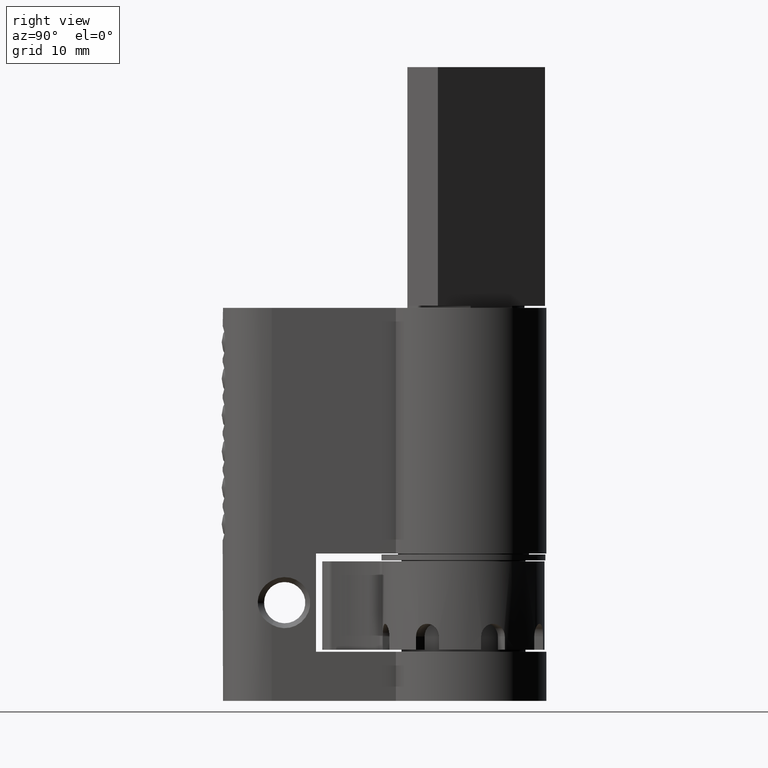
[diagram: clean part render]
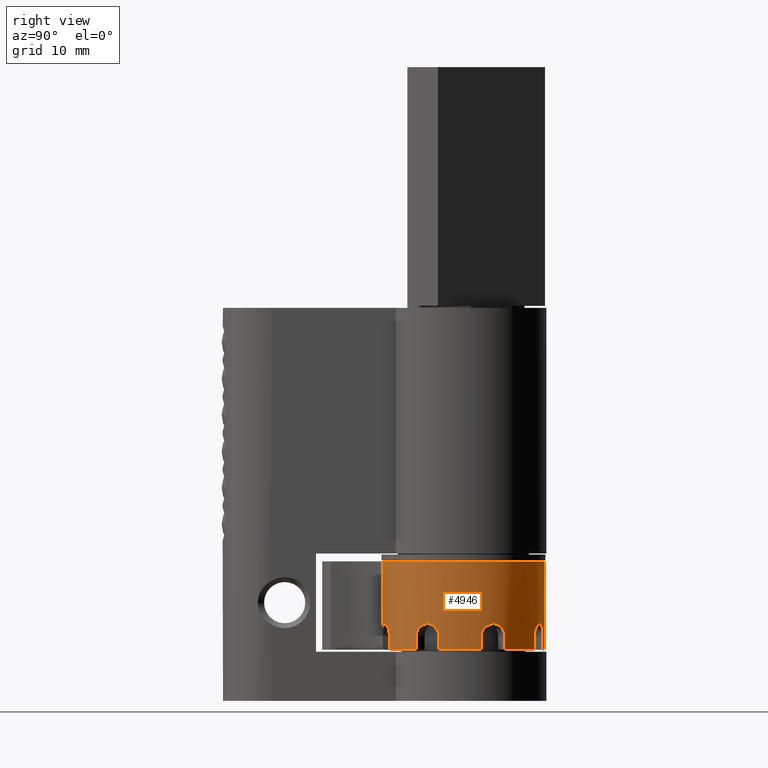
[diagram: same view with one face highlighted and labeled with its STEP entity id]
A machine part, right view. The second image highlights one B-rep face of the part: STEP entity #4946.
In plain terms, the highlighted cylindrical surface (partial cylindrical patch) has radius 8.25 mm, axis along (-0, 0, -1).
Its self-contained STEP definition (entity closure, byte-faithful):
#46 = CARTESIAN_POINT ( 'NONE',  ( 4.181360592484564300, 7.936376385521547200, -2.014212706617747500 ) ) ;
#164 = CARTESIAN_POINT ( 'NONE',  ( -3.607990530532185300, 7.630774681168525800, -3.149999999999999900 ) ) ;
#206 = DIRECTION ( 'NONE',  ( 0.0000000000000000000, 0.0000000000000000000, 1.000000000000000000 ) ) ;
#297 = ORIENTED_EDGE ( 'NONE', *, *, #3967, .T. ) ;
#313 = LINE ( 'NONE', #10210, #10831 ) ;
#320 = CARTESIAN_POINT ( 'NONE',  ( -6.950197036567889300, 19.49491407710913300, -3.149999999999999900 ) ) ;
#347 = CARTESIAN_POINT ( 'NONE',  ( 8.247340912086652800, 15.26203147340815900, -2.573021316981435500 ) ) ;
#459 = CARTESIAN_POINT ( 'NONE',  ( -3.847874939311754600, 7.752149569666931600, -2.357346788293829500 ) ) ;
#463 = CIRCLE ( 'NONE', #5161, 8.249999999999996400 ) ;
#506 = CARTESIAN_POINT ( 'NONE',  ( -5.737785845683579700, 9.122073415681228400, -2.977964927672466000 ) ) ;
#530 = VERTEX_POINT ( 'NONE', #5537 ) ;
#652 = LINE ( 'NONE', #13403, #8487 ) ;
#680 = CARTESIAN_POINT ( 'NONE',  ( 5.248511536462857000, 21.41553096883459900, -2.809088590091445100 ) ) ;
#682 = CARTESIAN_POINT ( 'NONE',  ( 0.0000000000000000000, 15.05000000000000100, 4.500000000000000000 ) ) ;
#721 = CARTESIAN_POINT ( 'NONE',  ( -0.9789254693200191100, 23.24193721834171500, -2.290422919468374300 ) ) ;
#748 = DIRECTION ( 'NONE',  ( -1.000000000000000000, 0.0000000000000000000, 0.0000000000000000000 ) ) ;
#758 = CARTESIAN_POINT ( 'NONE',  ( 7.940924510225126000, 12.81298906509025100, -4.500000000000000000 ) ) ;
#819 = CARTESIAN_POINT ( 'NONE',  ( 1.233531465044407600, 23.20732712395987500, -2.730895296086397900 ) ) ;
#904 = DIRECTION ( 'NONE',  ( 1.000000000000000000, 0.0000000000000000000, 0.0000000000000000000 ) ) ;
#953 = CARTESIAN_POINT ( 'NONE',  ( -8.242766086950734200, 15.39540879521930000, -3.064806857367110600 ) ) ;
#959 = CARTESIAN_POINT ( 'NONE',  ( 5.641190967191945100, 9.029987214501449700, -2.573021316981435100 ) ) ;
#1000 = CARTESIAN_POINT ( 'NONE',  ( -8.245370209674071300, 15.32833449262093100, -2.731228685212359500 ) ) ;
#1009 = CARTESIAN_POINT ( 'NONE',  ( 4.451752164921617600, 8.103679532219910400, -1.891718442361349300 ) ) ;
#1051 = CARTESIAN_POINT ( 'NONE',  ( 5.737785845683578000, 9.122073415681237300, -4.500000000000000000 ) ) ;
#1057 = CARTESIAN_POINT ( 'NONE',  ( 6.950197036567882200, 19.49491407710913300, -4.500000000000000000 ) ) ;
#1090 = CARTESIAN_POINT ( 'NONE',  ( 6.382535051978068800, 20.27806959491323400, -1.891718442361349100 ) ) ;
#1092 = CARTESIAN_POINT ( 'NONE',  ( 4.591367774646196100, 8.195161757056164100, -1.858457764098453200 ) ) ;
#1113 = EDGE_CURVE ( 'NONE', #6431, #4742, #8250, .T. ) ;
#1234 = CARTESIAN_POINT ( 'NONE',  ( 8.242766086950730700, 15.39540879521930300, -3.149999999999999900 ) ) ;
#1289 = CARTESIAN_POINT ( 'NONE',  ( 8.064026062316783000, 13.30390812906572900, -2.109635466130142900 ) ) ;
#1341 = CARTESIAN_POINT ( 'NONE',  ( 8.249782281327089400, 15.12653034752951900, -2.357179771853798600 ) ) ;
#1351 = CARTESIAN_POINT ( 'NONE',  ( -5.221727785971654400, 21.43717926233572200, -4.500000000000000000 ) ) ;
#1358 = AXIS2_PLACEMENT_3D ( 'NONE', #5045, #9220, #10333 ) ;
#1388 = CARTESIAN_POINT ( 'NONE',  ( 8.173058340878482000, 13.92279871558733500, -1.858457764098453600 ) ) ;
#1412 = ORIENTED_EDGE ( 'NONE', *, *, #1679, .F. ) ;
#1428 = CARTESIAN_POINT ( 'NONE',  ( 8.148581976284001300, 13.75768534993816600, -1.891718442361349300 ) ) ;
#1451 = CARTESIAN_POINT ( 'NONE',  ( -5.933686352302791200, 20.78243679873407100, -1.891718442361348700 ) ) ;
#1464 = CARTESIAN_POINT ( 'NONE',  ( -3.639028665496260500, 7.645655046943090800, -2.809173740290191300 ) ) ;
#1509 = CIRCLE ( 'NONE', #4363, 8.249999999999996400 ) ;
#1555 = EDGE_CURVE ( 'NONE', #4742, #8374, #12051, .T. ) ;
#1587 = EDGE_CURVE ( 'NONE', #8531, #13091, #6378, .T. ) ;
#1627 = LINE ( 'NONE', #7579, #12149 ) ;
#1640 = CIRCLE ( 'NONE', #6652, 8.249999999999996400 ) ;
#1679 = EDGE_CURVE ( 'NONE', #13611, #6431, #11021, .T. ) ;
#1689 = CARTESIAN_POINT ( 'NONE',  ( -5.363655153239184500, 8.780345376448565300, -2.109190280182881700 ) ) ;
#1756 = CARTESIAN_POINT ( 'NONE',  ( -0.6544375933045045700, 23.27549452396752000, -2.014051842793156000 ) ) ;
#1792 = VECTOR ( 'NONE', #12467, 1000.000000000000000 ) ;
#1795 = VERTEX_POINT ( 'NONE', #4618 ) ;
#1806 = CARTESIAN_POINT ( 'NONE',  ( -0.7992905870555616600, 23.26207381922417700, -2.110862913336682300 ) ) ;
#1831 = CARTESIAN_POINT ( 'NONE',  ( -8.242766086950732400, 15.39540879521929600, -4.500000000000000000 ) ) ;
#1887 = CARTESIAN_POINT ( 'NONE',  ( 5.221727785971646400, 21.43717926233572200, -3.149999999999999900 ) ) ;
#1929 = CARTESIAN_POINT ( 'NONE',  ( 0.1707453924665146600, 23.29865512613641300, -1.858457764098453600 ) ) ;
#1969 = LINE ( 'NONE', #2257, #9329 ) ;
#1980 = CARTESIAN_POINT ( 'NONE',  ( 3.607990530532192000, 7.630774681168527500, -3.149999999999999900 ) ) ;
#1998 = CARTESIAN_POINT ( 'NONE',  ( 3.607990530532192000, 7.630774681168527500, -3.149999999999999900 ) ) ;
#2020 = CARTESIAN_POINT ( 'NONE',  ( 5.254033728697248900, 8.687439327985826400, -2.014051842793156000 ) ) ;
#2093 = VERTEX_POINT ( 'NONE', #1998 ) ;
#2110 = CARTESIAN_POINT ( 'NONE',  ( 5.611729651231590000, 9.002417432983692800, -2.498400645042421000 ) ) ;
#2155 = CARTESIAN_POINT ( 'NONE',  ( -7.950443229088125300, 12.84607868672684500, -2.809386607868884900 ) ) ;
#2162 = CARTESIAN_POINT ( 'NONE',  ( 6.049690600957252000, 20.66182699604461700, -1.850063857052796300 ) ) ;
#2201 = EDGE_CURVE ( 'NONE', #5326, #3384, #2349, .T. ) ;
#2210 = DIRECTION ( 'NONE',  ( 1.000000000000000000, 0.0000000000000000000, 0.0000000000000000000 ) ) ;
#2257 = CARTESIAN_POINT ( 'NONE',  ( 5.737785845683578000, 9.122073415681237300, 4.500000000000000000 ) ) ;
#2263 = DIRECTION ( 'NONE',  ( 1.000000000000000000, 0.0000000000000000000, 0.0000000000000000000 ) ) ;
#2279 = DIRECTION ( 'NONE',  ( 0.0000000000000000000, 0.0000000000000000000, 1.000000000000000000 ) ) ;
#2285 = ORIENTED_EDGE ( 'NONE', *, *, #3148, .F. ) ;
#2300 = EDGE_CURVE ( 'NONE', #13611, #12532, #12024, .T. ) ;
#2304 = CARTESIAN_POINT ( 'NONE',  ( 8.244399995547997400, 15.36100896608335900, -2.809088590091446800 ) ) ;
#2349 = LINE ( 'NONE', #12047, #10512 ) ;
#2388 = DIRECTION ( 'NONE',  ( 0.0000000000000000000, 0.0000000000000000000, 1.000000000000000000 ) ) ;
#2415 = CARTESIAN_POINT ( 'NONE',  ( -6.931804524728641500, 19.52402993893957400, -2.809088590091446000 ) ) ;
#2445 = CARTESIAN_POINT ( 'NONE',  ( -5.221727785971655300, 21.43717926233572200, 4.500000000000000000 ) ) ;
#2470 = CYLINDRICAL_SURFACE ( 'NONE', #10254, 8.249999999999996400 ) ;
#2541 = DIRECTION ( 'NONE',  ( -0.0000000000000000000, -0.0000000000000000000, -1.000000000000000000 ) ) ;
#2588 = CARTESIAN_POINT ( 'NONE',  ( 3.668400800624667600, 7.660384228627154200, -2.730895296086397900 ) ) ;
#2589 = VERTEX_POINT ( 'NONE', #11057 ) ;
#2612 = CARTESIAN_POINT ( 'NONE',  ( -5.737785845683571800, 9.122073415681233800, -3.149999999999999900 ) ) ;
#2639 = ORIENTED_EDGE ( 'NONE', *, *, #1555, .F. ) ;
#2683 = VECTOR ( 'NONE', #12712, 1000.000000000000000 ) ;
#2684 = ORIENTED_EDGE ( 'NONE', *, *, #6532, .T. ) ;
#2701 = DIRECTION ( 'NONE',  ( 0.0000000000000000000, 0.0000000000000000000, 1.000000000000000000 ) ) ;
#2740 = CARTESIAN_POINT ( 'NONE',  ( -5.546587985377218600, 8.941585523070799000, -2.351234320650940300 ) ) ;
#2795 = VERTEX_POINT ( 'NONE', #11048 ) ;
#2815 = LINE ( 'NONE', #6055, #7987 ) ;
#2833 = CARTESIAN_POINT ( 'NONE',  ( 0.08445112901790777200, 23.30000500951478400, -1.849968208846305200 ) ) ;
#2835 = CIRCLE ( 'NONE', #3625, 8.249999999999996400 ) ;
#2856 = CARTESIAN_POINT ( 'NONE',  ( 0.0000000000000000000, 15.05000000000000100, -4.500000000000000000 ) ) ;
#2872 = CARTESIAN_POINT ( 'NONE',  ( 0.6550368050919902500, 23.27546923383847100, -2.014212706617748000 ) ) ;
#2902 = ORIENTED_EDGE ( 'NONE', *, *, #12602, .T. ) ;
#2909 = CARTESIAN_POINT ( 'NONE',  ( 5.709583226428097900, 21.00715604192476600, -2.014051842793156000 ) ) ;
#2957 = CARTESIAN_POINT ( 'NONE',  ( -1.300000000000003400, 23.19693193785244000, -2.977922735224003000 ) ) ;
#2965 = EDGE_CURVE ( 'NONE', #8856, #10453, #652, .T. ) ;
#3047 = CARTESIAN_POINT ( 'NONE',  ( 6.806050507425977600, 19.71422873000818400, -2.351856848566017200 ) ) ;
#3060 = EDGE_CURVE ( 'NONE', #6760, #12256, #3656, .T. ) ;
#3092 = CARTESIAN_POINT ( 'NONE',  ( 6.433640407563597600, 20.21497826126857700, -1.916318203011965400 ) ) ;
#3094 = CARTESIAN_POINT ( 'NONE',  ( 5.737785845683575300, 9.122073415681235500, -2.977922735224002500 ) ) ;
#3106 = LINE ( 'NONE', #10965, #11291 ) ;
#3148 = EDGE_CURVE ( 'NONE', #530, #8531, #9031, .T. ) ;
#3186 = EDGE_CURVE ( 'NONE', #13659, #1795, #7007, .T. ) ;
#3192 = CARTESIAN_POINT ( 'NONE',  ( 5.364992554649803400, 8.781517189662647400, -2.110862913336682300 ) ) ;
#3231 = CARTESIAN_POINT ( 'NONE',  ( -7.986514711003998500, 12.98110203966873400, -2.497774289444780700 ) ) ;
#3237 = CARTESIAN_POINT ( 'NONE',  ( 4.383154462647314500, 8.060244189545175100, -1.916318203011966300 ) ) ;
#3364 = EDGE_CURVE ( 'NONE', #6760, #11022, #1969, .T. ) ;
#3374 = CARTESIAN_POINT ( 'NONE',  ( 8.093806421912187700, 13.44447362604614500, -2.014212706617747100 ) ) ;
#3384 = VERTEX_POINT ( 'NONE', #4300 ) ;
#3454 = CARTESIAN_POINT ( 'NONE',  ( -4.181616749217396600, 7.936554124636447000, -2.014223730674229900 ) ) ;
#3468 = CARTESIAN_POINT ( 'NONE',  ( 8.242766086950736000, 15.39540879521930500, -2.977922735224003000 ) ) ;
#3528 = CARTESIAN_POINT ( 'NONE',  ( 5.221727785971649100, 21.43717926233572500, -4.500000000000000000 ) ) ;
#3537 = CARTESIAN_POINT ( 'NONE',  ( -6.385908750265327800, 20.27563088637482000, -1.884321085000645100 ) ) ;
#3597 = CARTESIAN_POINT ( 'NONE',  ( 3.607990530532191100, 7.630774681168526600, 4.500000000000000000 ) ) ;
#3625 = AXIS2_PLACEMENT_3D ( 'NONE', #5180, #13706, #904 ) ;
#3638 = CARTESIAN_POINT ( 'NONE',  ( -3.607990530532185300, 7.630774681168525800, -3.149999999999999900 ) ) ;
#3656 = CIRCLE ( 'NONE', #1358, 8.249999999999996400 ) ;
#3831 = ORIENTED_EDGE ( 'NONE', *, *, #8879, .F. ) ;
#3858 = DIRECTION ( 'NONE',  ( 1.000000000000000000, 0.0000000000000000000, 0.0000000000000000000 ) ) ;
#3885 = EDGE_CURVE ( 'NONE', #9159, #12256, #10316, .T. ) ;
#3893 = CARTESIAN_POINT ( 'NONE',  ( -0.1703661617525101500, 23.29998993767721800, -1.850063857052795600 ) ) ;
#3938 = CARTESIAN_POINT ( 'NONE',  ( -1.168055632705928200, 23.21695999162465500, -2.573021316981433800 ) ) ;
#3967 = EDGE_CURVE ( 'NONE', #8856, #13425, #463, .T. ) ;
#4003 = EDGE_LOOP ( 'NONE', ( #8087, #9917, #12503, #5330, #4089, #9313, #297, #12761, #10578, #6328, #6277, #4121, #2285, #7625, #6141, #2639, #11359, #1412, #11578, #3831, #6152, #9829, #2684, #9918, #9546, #4548, #8485, #9268, #5860, #2902, #4281, #13113 ) ) ;
#4067 = CARTESIAN_POINT ( 'NONE',  ( -2.867096866834723200, 7.314222369006045300, 4.500000000000000000 ) ) ;
#4089 = ORIENTED_EDGE ( 'NONE', *, *, #12757, .F. ) ;
#4121 = ORIENTED_EDGE ( 'NONE', *, *, #1587, .F. ) ;
#4166 = CARTESIAN_POINT ( 'NONE',  ( 6.665305590709233600, 19.91323498691223600, -2.109635466130142900 ) ) ;
#4204 = CARTESIAN_POINT ( 'NONE',  ( 6.945562338291195700, 19.50218467179050600, -2.978826338205058400 ) ) ;
#4281 = ORIENTED_EDGE ( 'NONE', *, *, #12208, .T. ) ;
#4293 = VECTOR ( 'NONE', #10810, 1000.000000000000000 ) ;
#4297 = CARTESIAN_POINT ( 'NONE',  ( -8.148490550159845500, 13.75712467246212800, -1.891886852822900700 ) ) ;
#4300 = CARTESIAN_POINT ( 'NONE',  ( -7.940924510225124200, 12.81298906509024600, -3.149999999999999900 ) ) ;
#4363 = AXIS2_PLACEMENT_3D ( 'NONE', #6945, #6903, #10984 ) ;
#4400 = CARTESIAN_POINT ( 'NONE',  ( 8.242766086950730700, 15.39540879521930300, -3.149999999999999900 ) ) ;
#4405 = CARTESIAN_POINT ( 'NONE',  ( 2.867096866834714300, 7.314222369006041700, -4.500000000000000000 ) ) ;
#4436 = CARTESIAN_POINT ( 'NONE',  ( 7.940924510225122500, 12.81298906509025300, -3.149999999999999900 ) ) ;
#4494 = CARTESIAN_POINT ( 'NONE',  ( 8.248350469043069600, 15.22169485498513800, -2.498400645042420100 ) ) ;
#4520 = CARTESIAN_POINT ( 'NONE',  ( -5.254464391146275800, 21.41029783178359800, -2.811939846125182100 ) ) ;
#4531 = EDGE_CURVE ( 'NONE', #11060, #530, #2815, .T. ) ;
#4532 = CARTESIAN_POINT ( 'NONE',  ( -4.592066363272435200, 8.194034009803612400, -1.850129356365146200 ) ) ;
#4548 = ORIENTED_EDGE ( 'NONE', *, *, #5824, .F. ) ;
#4560 = CARTESIAN_POINT ( 'NONE',  ( -6.665990107540942200, 19.91226261539924300, -2.110862913336683200 ) ) ;
#4618 = CARTESIAN_POINT ( 'NONE',  ( 6.950197036567880500, 19.49491407710913300, -3.149999999999999900 ) ) ;
#4651 = CARTESIAN_POINT ( 'NONE',  ( 0.0000000000000000000, 15.05000000000000100, -4.500000000000000000 ) ) ;
#4659 = VECTOR ( 'NONE', #5247, 1000.000000000000000 ) ;
#4742 = VERTEX_POINT ( 'NONE', #6855 ) ;
#4794 = EDGE_CURVE ( 'NONE', #11060, #8374, #6998, .T. ) ;
#4879 = CARTESIAN_POINT ( 'NONE',  ( -5.068643561670759500, 8.540193513654383400, -1.916126268495512900 ) ) ;
#4912 = CARTESIAN_POINT ( 'NONE',  ( -1.300000000000002500, 23.19693193785243300, -3.149999999999999900 ) ) ;
#4918 = CIRCLE ( 'NONE', #12548, 8.249999999999996400 ) ;
#4946 = ADVANCED_FACE ( 'NONE', ( #12339 ), #2470, .T. ) ;
#4963 = CARTESIAN_POINT ( 'NONE',  ( 1.299999999999996000, 23.19693193785243000, -3.065086773822777800 ) ) ;
#5007 = CARTESIAN_POINT ( 'NONE',  ( 5.355208928677621200, 21.32586662649891500, -2.498400645042420500 ) ) ;
#5011 = CARTESIAN_POINT ( 'NONE',  ( -6.950197036567889300, 19.49491407710913300, -3.149999999999999900 ) ) ;
#5045 = CARTESIAN_POINT ( 'NONE',  ( 0.0000000000000000000, 15.05000000000000100, -4.500000000000000000 ) ) ;
#5070 = CARTESIAN_POINT ( 'NONE',  ( 0.0000000000000000000, 15.05000000000000100, 4.500000000000000000 ) ) ;
#5092 = CARTESIAN_POINT ( 'NONE',  ( 1.258155737652413500, 23.20351633877234900, -2.811939846125183400 ) ) ;
#5161 = AXIS2_PLACEMENT_3D ( 'NONE', #4651, #13213, #6828 ) ;
#5180 = CARTESIAN_POINT ( 'NONE',  ( 0.0000000000000000000, 15.05000000000000100, -4.500000000000000000 ) ) ;
#5182 = CARTESIAN_POINT ( 'NONE',  ( -8.248327208467728200, 15.22888040558957100, -2.493813174800857200 ) ) ;
#5224 = CARTESIAN_POINT ( 'NONE',  ( 6.950197036567880500, 19.49491407710913300, -3.149999999999999900 ) ) ;
#5247 = DIRECTION ( 'NONE',  ( -0.0000000000000000000, -0.0000000000000000000, -1.000000000000000000 ) ) ;
#5269 = CARTESIAN_POINT ( 'NONE',  ( -8.009806847118143800, 13.07319695690101100, -2.356942507561714500 ) ) ;
#5326 = VERTEX_POINT ( 'NONE', #8609 ) ;
#5327 = CARTESIAN_POINT ( 'NONE',  ( 6.580097500248929700, 20.02892902340113300, -2.014212706617746700 ) ) ;
#5330 = ORIENTED_EDGE ( 'NONE', *, *, #3885, .F. ) ;
#5349 = VERTEX_POINT ( 'NONE', #4405 ) ;
#5372 = CARTESIAN_POINT ( 'NONE',  ( 4.871555618062088500, 8.389721893120880100, -1.850063857052796300 ) ) ;
#5523 = CARTESIAN_POINT ( 'NONE',  ( 8.245852239920664000, 14.74509089100981600, -2.014051842793155500 ) ) ;
#5534 = CARTESIAN_POINT ( 'NONE',  ( 0.0000000000000000000, 15.05000000000000100, -4.500000000000000000 ) ) ;
#5537 = CARTESIAN_POINT ( 'NONE',  ( -1.300000000000002500, 23.19693193785243300, -3.149999999999999900 ) ) ;
#5547 = CARTESIAN_POINT ( 'NONE',  ( 7.940924510225124200, 12.81298906509025500, 4.500000000000000000 ) ) ;
#5570 = CARTESIAN_POINT ( 'NONE',  ( 7.952322212136894400, 12.85378598921472800, -2.811939846125182600 ) ) ;
#5581 = CARTESIAN_POINT ( 'NONE',  ( -2.867096866834723200, 7.314222369006045300, -4.500000000000000000 ) ) ;
#5694 = CARTESIAN_POINT ( 'NONE',  ( -6.276208040904420700, 20.40729140780417000, -1.850063857052796500 ) ) ;
#5705 = CARTESIAN_POINT ( 'NONE',  ( -3.607990530532185800, 7.630774681168524000, -2.977964885383265900 ) ) ;
#5736 = CARTESIAN_POINT ( 'NONE',  ( -6.877442424995758900, 19.60679439483090300, -2.573021316981433800 ) ) ;
#5824 = EDGE_CURVE ( 'NONE', #6712, #10472, #3106, .T. ) ;
#5860 = ORIENTED_EDGE ( 'NONE', *, *, #8538, .F. ) ;
#6055 = CARTESIAN_POINT ( 'NONE',  ( -1.300000000000002500, 23.19693193785243300, 4.500000000000000000 ) ) ;
#6057 = CARTESIAN_POINT ( 'NONE',  ( 1.135735283601821500, 23.22171634944374200, -2.494942843737767200 ) ) ;
#6098 = CARTESIAN_POINT ( 'NONE',  ( 5.427251064526024600, 21.26367125506270400, -2.357179771853799500 ) ) ;
#6141 = ORIENTED_EDGE ( 'NONE', *, *, #4794, .T. ) ;
#6152 = ORIENTED_EDGE ( 'NONE', *, *, #13828, .F. ) ;
#6238 = CARTESIAN_POINT ( 'NONE',  ( 6.219103341388898100, 20.47148211094870600, -1.849968208846304800 ) ) ;
#6272 = CARTESIAN_POINT ( 'NONE',  ( -8.093580490327168400, 13.44329359668698500, -2.014829318746354400 ) ) ;
#6277 = ORIENTED_EDGE ( 'NONE', *, *, #8185, .T. ) ;
#6281 = CARTESIAN_POINT ( 'NONE',  ( 5.541591241156693200, 8.938082862200534600, -2.357179771853799500 ) ) ;
#6322 = CARTESIAN_POINT ( 'NONE',  ( -6.950197036567887600, 19.49491407710913300, 4.500000000000000000 ) ) ;
#6328 = ORIENTED_EDGE ( 'NONE', *, *, #13286, .F. ) ;
#6331 = CARTESIAN_POINT ( 'NONE',  ( -7.940924510225122500, 12.81298906509024400, -2.980444499737070300 ) ) ;
#6378 = LINE ( 'NONE', #10000, #10357 ) ;
#6430 = CARTESIAN_POINT ( 'NONE',  ( 5.737785845683577100, 9.122073415681237300, -3.149999999999999900 ) ) ;
#6431 = VERTEX_POINT ( 'NONE', #5011 ) ;
#6476 = CARTESIAN_POINT ( 'NONE',  ( -8.022665558868759200, 13.12567666784047800, -2.291510752272001700 ) ) ;
#6508 = CARTESIAN_POINT ( 'NONE',  ( 1.299999999999995800, 23.19693193785243300, -4.500000000000000000 ) ) ;
#6532 = EDGE_CURVE ( 'NONE', #5326, #11077, #1509, .T. ) ;
#6640 = CARTESIAN_POINT ( 'NONE',  ( -5.349444867134073100, 21.33094597522357800, -2.494942843737767200 ) ) ;
#6652 = AXIS2_PLACEMENT_3D ( 'NONE', #682, #11267, #3858 ) ;
#6712 = VERTEX_POINT ( 'NONE', #8278 ) ;
#6740 = CARTESIAN_POINT ( 'NONE',  ( -5.228411163863753200, 21.43173183770677400, -2.978826338205058400 ) ) ;
#6758 = CARTESIAN_POINT ( 'NONE',  ( 8.249338687345966600, 14.89052248936038800, -2.110862913336682300 ) ) ;
#6760 = VERTEX_POINT ( 'NONE', #1051 ) ;
#6762 = EDGE_CURVE ( 'NONE', #11022, #2093, #13574, .T. ) ;
#6774 = CARTESIAN_POINT ( 'NONE',  ( -6.950197036567886700, 19.49491407710913300, -4.500000000000000000 ) ) ;
#6778 = CARTESIAN_POINT ( 'NONE',  ( -5.273681257846016400, 21.39443627702175400, -2.730895296086397900 ) ) ;
#6825 = CARTESIAN_POINT ( 'NONE',  ( -5.221727785971656200, 21.43717926233572200, -3.149999999999999900 ) ) ;
#6828 = DIRECTION ( 'NONE',  ( 1.000000000000000000, 0.0000000000000000000, 0.0000000000000000000 ) ) ;
#6840 = VERTEX_POINT ( 'NONE', #5581 ) ;
#6855 = CARTESIAN_POINT ( 'NONE',  ( -5.221727785971656200, 21.43717926233572200, -3.149999999999999900 ) ) ;
#6884 = CARTESIAN_POINT ( 'NONE',  ( -3.763470656864765100, 7.708266480795295200, -2.498544968966437200 ) ) ;
#6903 = DIRECTION ( 'NONE',  ( 0.0000000000000000000, 0.0000000000000000000, 1.000000000000000000 ) ) ;
#6945 = CARTESIAN_POINT ( 'NONE',  ( 0.0000000000000000000, 15.05000000000000100, -4.500000000000000000 ) ) ;
#6968 = CARTESIAN_POINT ( 'NONE',  ( -5.617126208622456900, 9.007256547921281600, -2.494205455285679800 ) ) ;
#6982 = B_SPLINE_CURVE_WITH_KNOTS ( 'NONE', 3,
 ( #3638, #5705, #1464, #8903, #6884, #459, #12002, #7935, #3454, #10917, #4532, #7983, #8999, #10117, #4879, #7066, #1689, #2740, #6968, #12235, #506, #2612 ),
 .UNSPECIFIED., .F., .F.,
 ( 4, 2, 2, 2, 2, 2, 2, 2, 2, 2, 4 ),
 ( 0.0000000000000000000, 0.0005087170126898827800, 0.0007630755190348235800, 0.001017434025379764300, 0.001526151038069645900, 0.002034868050759527200, 0.002289226557104468600, 0.002543585063449409900, 0.003052302076139290400, 0.003561019088829170900, 0.004069736101519051000 ),
 .UNSPECIFIED. ) ;
#6998 = CIRCLE ( 'NONE', #7397, 8.249999999999996400 ) ;
#7007 = B_SPLINE_CURVE_WITH_KNOTS ( 'NONE', 3,
 ( #1887, #10465, #680, #13542, #5007, #6098, #13583, #9310, #2909, #10379, #2162, #6238, #7488, #1090, #3092, #5327, #4166, #3047, #8406, #11717, #12806, #4204, #8550, #5224 ),
 .UNSPECIFIED., .F., .F.,
 ( 4, 2, 2, 2, 2, 2, 2, 2, 2, 2, 2, 4 ),
 ( 4.336808689942017700E-019, 0.0005088416529597203700, 0.0007632624794395793000, 0.001017683305919438300, 0.001526524958879150100, 0.002035366611838862000, 0.002289787438318714800, 0.002544208264798568100, 0.003053049917758266900, 0.003561891570717965700, 0.003816312397197813400, 0.004070733223677661500 ),
 .UNSPECIFIED. ) ;
#7066 = CARTESIAN_POINT ( 'NONE',  ( -5.254049969468707300, 8.687424177421402000, -2.013877638656695400 ) ) ;
#7184 = CARTESIAN_POINT ( 'NONE',  ( 1.291487555237472500, 23.19830316332683000, -2.978826338205059700 ) ) ;
#7199 = CARTESIAN_POINT ( 'NONE',  ( -8.242766086950732400, 15.39540879521929600, 4.500000000000000000 ) ) ;
#7211 = DIRECTION ( 'NONE',  ( -0.0000000000000000000, -0.0000000000000000000, -1.000000000000000000 ) ) ;
#7351 = CARTESIAN_POINT ( 'NONE',  ( -8.243141242671461200, 15.38675599967118200, -2.978689200674675200 ) ) ;
#7363 = CARTESIAN_POINT ( 'NONE',  ( 0.0000000000000000000, 15.05000000000000100, -4.500000000000000000 ) ) ;
#7388 = CARTESIAN_POINT ( 'NONE',  ( -5.737785845683572600, 9.122073415681233800, 4.500000000000000000 ) ) ;
#7389 = CARTESIAN_POINT ( 'NONE',  ( -8.063827200940222500, 13.30302470023571700, -2.110430020489820100 ) ) ;
#7395 = CARTESIAN_POINT ( 'NONE',  ( 5.008662336396518800, 8.492534763545236800, -1.884321085000645300 ) ) ;
#7397 = AXIS2_PLACEMENT_3D ( 'NONE', #2856, #9203, #8178 ) ;
#7488 = CARTESIAN_POINT ( 'NONE',  ( 6.275463014228830800, 20.40612073575931600, -1.858457764098453400 ) ) ;
#7490 = CARTESIAN_POINT ( 'NONE',  ( 3.646044000791133200, 7.649381938573620600, -2.811939846125183000 ) ) ;
#7534 = DIRECTION ( 'NONE',  ( -0.0000000000000000000, -0.0000000000000000000, -1.000000000000000000 ) ) ;
#7541 = CARTESIAN_POINT ( 'NONE',  ( 3.842556646835500800, 7.748485665882222800, -2.351856848566019000 ) ) ;
#7579 = CARTESIAN_POINT ( 'NONE',  ( -2.867096866834723200, 7.314222369006045300, 4.500000000000000000 ) ) ;
#7625 = ORIENTED_EDGE ( 'NONE', *, *, #4531, .F. ) ;
#7710 = CARTESIAN_POINT ( 'NONE',  ( -5.604146281274522900, 21.10565005705779400, -2.109635466130142400 ) ) ;
#7732 = CARTESIAN_POINT ( 'NONE',  ( 8.250192579915600200, 15.07128046149092900, -2.290422919468374300 ) ) ;
#7813 = LINE ( 'NONE', #7199, #1792 ) ;
#7844 = CARTESIAN_POINT ( 'NONE',  ( -5.422825121016717100, 21.26854652329119900, -2.351856848566017600 ) ) ;
#7879 = CARTESIAN_POINT ( 'NONE',  ( 3.607990530532191500, 7.630774681168526600, -4.500000000000000000 ) ) ;
#7935 = CARTESIAN_POINT ( 'NONE',  ( -4.055312416450592000, 7.864497181998960900, -2.111044088801439700 ) ) ;
#7983 = CARTESIAN_POINT ( 'NONE',  ( -4.800762043948036100, 8.340127081438526000, -1.849935884179988700 ) ) ;
#7987 = VECTOR ( 'NONE', #13540, 1000.000000000000000 ) ;
#8087 = ORIENTED_EDGE ( 'NONE', *, *, #6762, .F. ) ;
#8109 = CARTESIAN_POINT ( 'NONE',  ( -8.242766086950732400, 15.39540879521929600, -3.149999999999999900 ) ) ;
#8146 = CARTESIAN_POINT ( 'NONE',  ( -1.266022455412887800, 23.20254837495408400, -2.809088590091446400 ) ) ;
#8176 = LINE ( 'NONE', #9371, #4659 ) ;
#8178 = DIRECTION ( 'NONE',  ( 1.000000000000000000, 0.0000000000000000000, 0.0000000000000000000 ) ) ;
#8185 = EDGE_CURVE ( 'NONE', #8348, #13091, #12501, .T. ) ;
#8250 = B_SPLINE_CURVE_WITH_KNOTS ( 'NONE', 3,
 ( #320, #11045, #2415, #5736, #12086, #10945, #8855, #4560, #9874, #3537, #5694, #13071, #8809, #1451, #12179, #13210, #7710, #7844, #6640, #6778, #4520, #6740, #8892, #6825 ),
 .UNSPECIFIED., .F., .F.,
 ( 4, 2, 2, 2, 2, 2, 2, 2, 2, 2, 2, 4 ),
 ( 4.336808689942017700E-019, 0.0005088416529597125600, 0.0007632624794395662900, 0.001017683305919420100, 0.001526524958879127200, 0.002035366611838834200, 0.002289787438318687900, 0.002544208264798541200, 0.003053049917758247800, 0.003561891570717955300, 0.003816312397197808600, 0.004070733223677661500 ),
 .UNSPECIFIED. ) ;
#8276 = CARTESIAN_POINT ( 'NONE',  ( 0.3375838530981017400, 23.29351275374232000, -1.891718442361349100 ) ) ;
#8278 = CARTESIAN_POINT ( 'NONE',  ( -3.607990530532186200, 7.630774681168523100, -4.500000000000000000 ) ) ;
#8316 = DIRECTION ( 'NONE',  ( -0.0000000000000000000, -0.0000000000000000000, -1.000000000000000000 ) ) ;
#8330 = CARTESIAN_POINT ( 'NONE',  ( -1.033754142635618500, 23.23511557377018400, -2.357179771853799500 ) ) ;
#8348 = VERTEX_POINT ( 'NONE', #3528 ) ;
#8365 = VERTEX_POINT ( 'NONE', #7879 ) ;
#8367 = CARTESIAN_POINT ( 'NONE',  ( -8.172911802956091900, 13.92175467220048500, -1.858613148958124400 ) ) ;
#8374 = VERTEX_POINT ( 'NONE', #1351 ) ;
#8401 = CARTESIAN_POINT ( 'NONE',  ( -8.242766086950732400, 15.39540879521929600, -3.149999999999999900 ) ) ;
#8406 = CARTESIAN_POINT ( 'NONE',  ( 6.859509109074796400, 19.63410051293644900, -2.494942843737766800 ) ) ;
#8409 = CARTESIAN_POINT ( 'NONE',  ( 5.713174526552876400, 9.097983980807562400, -2.809088590091446800 ) ) ;
#8414 = DIRECTION ( 'NONE',  ( 0.0000000000000000000, 0.0000000000000000000, 1.000000000000000000 ) ) ;
#8458 = CARTESIAN_POINT ( 'NONE',  ( 3.607990530532192400, 7.630774681168527500, -3.065086773822778300 ) ) ;
#8485 = ORIENTED_EDGE ( 'NONE', *, *, #10367, .T. ) ;
#8487 = VECTOR ( 'NONE', #10104, 1000.000000000000000 ) ;
#8498 = EDGE_CURVE ( 'NONE', #1795, #13425, #10466, .T. ) ;
#8500 = CARTESIAN_POINT ( 'NONE',  ( -5.737785845683573500, 9.122073415681230200, -4.500000000000000000 ) ) ;
#8531 = VERTEX_POINT ( 'NONE', #13302 ) ;
#8538 = EDGE_CURVE ( 'NONE', #2795, #13745, #1640, .T. ) ;
#8540 = DIRECTION ( 'NONE',  ( 0.0000000000000000000, 0.0000000000000000000, 1.000000000000000000 ) ) ;
#8550 = CARTESIAN_POINT ( 'NONE',  ( 6.950197036567883100, 19.49491407710913600, -3.065086773822777800 ) ) ;
#8576 = AXIS2_PLACEMENT_3D ( 'NONE', #5534, #206, #2210 ) ;
#8578 = LINE ( 'NONE', #3597, #9779 ) ;
#8609 = CARTESIAN_POINT ( 'NONE',  ( -7.940924510225124200, 12.81298906509024400, -4.500000000000000000 ) ) ;
#8631 = CARTESIAN_POINT ( 'NONE',  ( 0.0000000000000000000, 15.05000000000000100, -4.500000000000000000 ) ) ;
#8809 = CARTESIAN_POINT ( 'NONE',  ( -6.048441352260097000, 20.66122291370205100, -1.858457764098453200 ) ) ;
#8834 = CARTESIAN_POINT ( 'NONE',  ( 7.984611308106301500, 12.97326578767400900, -2.494942843737766800 ) ) ;
#8855 = CARTESIAN_POINT ( 'NONE',  ( -6.770368088881632200, 19.76468412566409300, -2.290422919468374300 ) ) ;
#8856 = VERTEX_POINT ( 'NONE', #13223 ) ;
#8874 = CARTESIAN_POINT ( 'NONE',  ( 7.940924510225126000, 12.81298906509025000, -3.065086773822777400 ) ) ;
#8879 = EDGE_CURVE ( 'NONE', #11514, #12532, #7813, .T. ) ;
#8892 = CARTESIAN_POINT ( 'NONE',  ( -5.221727785971650900, 21.43717926233571800, -3.065086773822777800 ) ) ;
#8903 = CARTESIAN_POINT ( 'NONE',  ( -3.727503657923028100, 7.690020045325457700, -2.573152219668045400 ) ) ;
#8910 = B_SPLINE_CURVE_WITH_KNOTS ( 'NONE', 3,
 ( #12675, #6331, #2155, #9611, #3231, #5269, #6476, #7389, #6272, #10698, #4297, #8367, #11670, #10509, #12754, #11573, #13788, #9483, #5182, #1000, #13749, #7351, #953, #8401 ),
 .UNSPECIFIED., .F., .F.,
 ( 4, 2, 2, 2, 2, 2, 2, 2, 2, 2, 2, 4 ),
 ( 0.005033618181650120400, 0.005542268779240106000, 0.005796594078035098700, 0.006050919376830091500, 0.006559569974420077900, 0.006813895273215069000, 0.007068220572010059200, 0.007576871169600037800, 0.008085521767190014700, 0.008594172364779991600, 0.008848497663574980000, 0.009102822962369968400 ),
 .UNSPECIFIED. ) ;
#8999 = CARTESIAN_POINT ( 'NONE',  ( -4.870663355925979800, 8.390713091412040500, -1.858387441711049300 ) ) ;
#9031 = B_SPLINE_CURVE_WITH_KNOTS ( 'NONE', 3,
 ( #4912, #2957, #8146, #3938, #10422, #8330, #721, #1806, #1756, #9261, #3893, #2833, #1929, #8276, #11408, #2872, #11370, #12417, #6057, #819, #5092, #7184, #4963, #9393 ),
 .UNSPECIFIED., .F., .F.,
 ( 4, 2, 2, 2, 2, 2, 2, 2, 2, 2, 2, 4 ),
 ( 0.0000000000000000000, 0.0005088416529597077900, 0.0007632624794395610900, 0.001017683305919414500, 0.001526524958879121500, 0.002035366611838828600, 0.002289787438318682300, 0.002544208264798535600, 0.003053049917758243100, 0.003561891570717951000, 0.003816312397197806000, 0.004070733223677660600 ),
 .UNSPECIFIED. ) ;
#9159 = VERTEX_POINT ( 'NONE', #10800 ) ;
#9197 = VECTOR ( 'NONE', #2541, 1000.000000000000000 ) ;
#9203 = DIRECTION ( 'NONE',  ( 0.0000000000000000000, 0.0000000000000000000, 1.000000000000000000 ) ) ;
#9220 = DIRECTION ( 'NONE',  ( 0.0000000000000000000, 0.0000000000000000000, 1.000000000000000000 ) ) ;
#9261 = CARTESIAN_POINT ( 'NONE',  ( -0.3416484501909394200, 23.29441174759193700, -1.884321085000645300 ) ) ;
#9268 = ORIENTED_EDGE ( 'NONE', *, *, #9435, .F. ) ;
#9298 = LINE ( 'NONE', #7388, #11610 ) ;
#9310 = CARTESIAN_POINT ( 'NONE',  ( 5.603259952143592800, 21.10644283087411900, -2.110862913336683600 ) ) ;
#9313 = ORIENTED_EDGE ( 'NONE', *, *, #2965, .F. ) ;
#9329 = VECTOR ( 'NONE', #11815, 1000.000000000000000 ) ;
#9371 = CARTESIAN_POINT ( 'NONE',  ( 2.867096866834714300, 7.314222369006041700, 4.500000000000000000 ) ) ;
#9393 = CARTESIAN_POINT ( 'NONE',  ( 1.299999999999995600, 23.19693193785243300, -3.149999999999999900 ) ) ;
#9430 = EDGE_CURVE ( 'NONE', #2589, #11077, #9298, .T. ) ;
#9435 = EDGE_CURVE ( 'NONE', #13745, #6840, #1627, .T. ) ;
#9462 = VECTOR ( 'NONE', #8316, 1000.000000000000000 ) ;
#9483 = CARTESIAN_POINT ( 'NONE',  ( -8.250481586304452700, 15.13254488642168200, -2.351288427704584900 ) ) ;
#9546 = ORIENTED_EDGE ( 'NONE', *, *, #11465, .F. ) ;
#9611 = CARTESIAN_POINT ( 'NONE',  ( -7.976012716038075800, 12.94125622061091700, -2.574016286562997600 ) ) ;
#9618 = CARTESIAN_POINT ( 'NONE',  ( 3.615750019682352000, 7.634533976749510800, -2.978826338205059300 ) ) ;
#9740 = CARTESIAN_POINT ( 'NONE',  ( 8.135425797377401100, 13.67756551027805400, -1.916318203011966100 ) ) ;
#9779 = VECTOR ( 'NONE', #10037, 1000.000000000000000 ) ;
#9829 = ORIENTED_EDGE ( 'NONE', *, *, #2201, .F. ) ;
#9874 = CARTESIAN_POINT ( 'NONE',  ( -6.579718039090436400, 20.02939346240259900, -2.014051842793156400 ) ) ;
#9894 = CARTESIAN_POINT ( 'NONE',  ( 8.228328948915629900, 14.43222056056646900, -1.884321085000645100 ) ) ;
#9917 = ORIENTED_EDGE ( 'NONE', *, *, #3364, .F. ) ;
#9918 = ORIENTED_EDGE ( 'NONE', *, *, #9430, .F. ) ;
#10000 = CARTESIAN_POINT ( 'NONE',  ( 1.299999999999995600, 23.19693193785243300, 4.500000000000000000 ) ) ;
#10037 = DIRECTION ( 'NONE',  ( -0.0000000000000000000, -0.0000000000000000000, -1.000000000000000000 ) ) ;
#10104 = DIRECTION ( 'NONE',  ( 0.0000000000000000000, 0.0000000000000000000, 1.000000000000000000 ) ) ;
#10117 = CARTESIAN_POINT ( 'NONE',  ( -5.004370038426013200, 8.490598794390212600, -1.891569025795684800 ) ) ;
#10210 = CARTESIAN_POINT ( 'NONE',  ( 5.221727785971649100, 21.43717926233572200, 4.500000000000000000 ) ) ;
#10254 = AXIS2_PLACEMENT_3D ( 'NONE', #5070, #7211, #748 ) ;
#10316 = LINE ( 'NONE', #5547, #4293 ) ;
#10333 = DIRECTION ( 'NONE',  ( 1.000000000000000000, 0.0000000000000000000, 0.0000000000000000000 ) ) ;
#10357 = VECTOR ( 'NONE', #13055, 1000.000000000000000 ) ;
#10367 = EDGE_CURVE ( 'NONE', #6712, #6840, #4918, .T. ) ;
#10379 = CARTESIAN_POINT ( 'NONE',  ( 5.931655795904633900, 20.78607080206134900, -1.884321085000644700 ) ) ;
#10422 = CARTESIAN_POINT ( 'NONE',  ( -1.128108958475626500, 23.22264551789678700, -2.498400645042420100 ) ) ;
#10453 = VERTEX_POINT ( 'NONE', #4400 ) ;
#10465 = CARTESIAN_POINT ( 'NONE',  ( 5.221727785971648200, 21.43717926233572900, -2.977922735224001600 ) ) ;
#10466 = LINE ( 'NONE', #12576, #9462 ) ;
#10472 = VERTEX_POINT ( 'NONE', #164 ) ;
#10509 = CARTESIAN_POINT ( 'NONE',  ( -8.213931610961223500, 14.26082200409017600, -1.849937064017609400 ) ) ;
#10512 = VECTOR ( 'NONE', #2279, 1000.000000000000000 ) ;
#10516 = CARTESIAN_POINT ( 'NONE',  ( 3.756764063251912100, 7.704690850396885600, -2.494942843737767600 ) ) ;
#10520 = AXIS2_PLACEMENT_3D ( 'NONE', #8631, #8540, #11705 ) ;
#10578 = ORIENTED_EDGE ( 'NONE', *, *, #3186, .F. ) ;
#10591 = DIRECTION ( 'NONE',  ( -0.0000000000000000000, -0.0000000000000000000, -1.000000000000000000 ) ) ;
#10658 = CARTESIAN_POINT ( 'NONE',  ( 4.662830158258194600, 8.243552353433607000, -1.849968208846305200 ) ) ;
#10698 = CARTESIAN_POINT ( 'NONE',  ( -8.135333121065448500, 13.67700412809855200, -1.916493909439636000 ) ) ;
#10800 = CARTESIAN_POINT ( 'NONE',  ( 7.940924510225122500, 12.81298906509025300, -3.149999999999999900 ) ) ;
#10810 = DIRECTION ( 'NONE',  ( -0.0000000000000000000, -0.0000000000000000000, -1.000000000000000000 ) ) ;
#10831 = VECTOR ( 'NONE', #2701, 1000.000000000000000 ) ;
#10837 = CARTESIAN_POINT ( 'NONE',  ( 7.958965933723530600, 12.87780135614296600, -2.730895296086397900 ) ) ;
#10917 = CARTESIAN_POINT ( 'NONE',  ( -4.448598733737553900, 8.100395682828347400, -1.884435292561192000 ) ) ;
#10945 = CARTESIAN_POINT ( 'NONE',  ( -6.801722024696901200, 19.71919073096660900, -2.357179771853798600 ) ) ;
#10965 = CARTESIAN_POINT ( 'NONE',  ( -3.607990530532185800, 7.630774681168524900, 4.500000000000000000 ) ) ;
#10984 = DIRECTION ( 'NONE',  ( 1.000000000000000000, 0.0000000000000000000, 0.0000000000000000000 ) ) ;
#11021 = LINE ( 'NONE', #6322, #2683 ) ;
#11022 = VERTEX_POINT ( 'NONE', #13841 ) ;
#11045 = CARTESIAN_POINT ( 'NONE',  ( -6.950197036567886700, 19.49491407710913300, -2.977922735224001200 ) ) ;
#11048 = CARTESIAN_POINT ( 'NONE',  ( 2.867096866834714300, 7.314222369006041700, 4.500000000000000000 ) ) ;
#11057 = CARTESIAN_POINT ( 'NONE',  ( -5.737785845683571800, 9.122073415681233800, -3.149999999999999900 ) ) ;
#11060 = VERTEX_POINT ( 'NONE', #12756 ) ;
#11077 = VERTEX_POINT ( 'NONE', #8500 ) ;
#11267 = DIRECTION ( 'NONE',  ( 0.0000000000000000000, 0.0000000000000000000, 1.000000000000000000 ) ) ;
#11291 = VECTOR ( 'NONE', #2388, 1000.000000000000000 ) ;
#11359 = ORIENTED_EDGE ( 'NONE', *, *, #1113, .F. ) ;
#11370 = CARTESIAN_POINT ( 'NONE',  ( 0.7981091371971275100, 23.26220889655088800, -2.109635466130143300 ) ) ;
#11408 = CARTESIAN_POINT ( 'NONE',  ( 0.4186892902126829700, 23.28974687787636100, -1.916318203011965900 ) ) ;
#11465 = EDGE_CURVE ( 'NONE', #10472, #2589, #6982, .T. ) ;
#11514 = VERTEX_POINT ( 'NONE', #8109 ) ;
#11573 = CARTESIAN_POINT ( 'NONE',  ( -8.245825022358335600, 14.74428850370918000, -2.013578091969483000 ) ) ;
#11578 = ORIENTED_EDGE ( 'NONE', *, *, #2300, .T. ) ;
#11610 = VECTOR ( 'NONE', #7534, 1000.000000000000000 ) ;
#11670 = CARTESIAN_POINT ( 'NONE',  ( -8.184275030894953700, 14.00722206421336600, -1.850031601655922000 ) ) ;
#11705 = DIRECTION ( 'NONE',  ( 1.000000000000000000, 0.0000000000000000000, 0.0000000000000000000 ) ) ;
#11717 = CARTESIAN_POINT ( 'NONE',  ( 6.913774493978468000, 19.55147841591614400, -2.730895296086397500 ) ) ;
#11815 = DIRECTION ( 'NONE',  ( 0.0000000000000000000, 0.0000000000000000000, 1.000000000000000000 ) ) ;
#11960 = CARTESIAN_POINT ( 'NONE',  ( 8.008930037815087400, 13.06646961080746600, -2.351856848566017200 ) ) ;
#12002 = CARTESIAN_POINT ( 'NONE',  ( -3.896679689598484300, 7.777997883505505200, -2.290596256600250700 ) ) ;
#12024 = CIRCLE ( 'NONE', #10520, 8.249999999999996400 ) ;
#12047 = CARTESIAN_POINT ( 'NONE',  ( -7.940924510225124200, 12.81298906509024400, 4.500000000000000000 ) ) ;
#12051 = LINE ( 'NONE', #2445, #9197 ) ;
#12062 = CARTESIAN_POINT ( 'NONE',  ( 8.213984761272252300, 14.26144883334505800, -1.850063857052796300 ) ) ;
#12086 = CARTESIAN_POINT ( 'NONE',  ( -6.855133271790901300, 19.64041527635318500, -2.498400645042418800 ) ) ;
#12149 = VECTOR ( 'NONE', #10591, 1000.000000000000000 ) ;
#12179 = CARTESIAN_POINT ( 'NONE',  ( -5.876954589343149800, 20.84052105496651900, -1.916318203011965000 ) ) ;
#12208 = EDGE_CURVE ( 'NONE', #5349, #8365, #2835, .T. ) ;
#12235 = CARTESIAN_POINT ( 'NONE',  ( -5.713077004135499200, 9.097890591054993000, -2.808665375426679000 ) ) ;
#12256 = VERTEX_POINT ( 'NONE', #758 ) ;
#12339 = FACE_OUTER_BOUND ( 'NONE', #4003, .T. ) ;
#12417 = CARTESIAN_POINT ( 'NONE',  ( 1.040338439177759000, 23.23505034116689300, -2.351856848566018500 ) ) ;
#12467 = DIRECTION ( 'NONE',  ( -0.0000000000000000000, -0.0000000000000000000, -1.000000000000000000 ) ) ;
#12501 = CIRCLE ( 'NONE', #8576, 8.249999999999996400 ) ;
#12503 = ORIENTED_EDGE ( 'NONE', *, *, #3060, .T. ) ;
#12532 = VERTEX_POINT ( 'NONE', #1831 ) ;
#12548 = AXIS2_PLACEMENT_3D ( 'NONE', #7363, #8414, #2263 ) ;
#12576 = CARTESIAN_POINT ( 'NONE',  ( 6.950197036567882200, 19.49491407710913300, 4.500000000000000000 ) ) ;
#12602 = EDGE_CURVE ( 'NONE', #2795, #5349, #8176, .T. ) ;
#12675 = CARTESIAN_POINT ( 'NONE',  ( -7.940924510225124200, 12.81298906509024600, -3.149999999999999900 ) ) ;
#12687 = B_SPLINE_CURVE_WITH_KNOTS ( 'NONE', 3,
 ( #1234, #3468, #2304, #347, #4494, #1341, #7732, #6758, #5523, #9894, #12062, #13094, #1388, #1428, #9740, #3374, #1289, #11960, #8834, #10837, #5570, #12999, #8874, #4436 ),
 .UNSPECIFIED., .F., .F.,
 ( 4, 2, 2, 2, 2, 2, 2, 2, 2, 2, 2, 4 ),
 ( 4.336808689942017700E-019, 0.0005088416529597062700, 0.0007632624794395595700, 0.001017683305919413200, 0.001526524958879120000, 0.002035366611838827300, 0.002289787438318681000, 0.002544208264798534700, 0.003053049917758241300, 0.003561891570717948300, 0.003816312397197802100, 0.004070733223677656200 ),
 .UNSPECIFIED. ) ;
#12712 = DIRECTION ( 'NONE',  ( 0.0000000000000000000, 0.0000000000000000000, 1.000000000000000000 ) ) ;
#12754 = CARTESIAN_POINT ( 'NONE',  ( -8.228251631872202800, 14.43115842018522000, -1.884022557410689500 ) ) ;
#12756 = CARTESIAN_POINT ( 'NONE',  ( -1.300000000000002500, 23.19693193785243300, -4.500000000000000000 ) ) ;
#12757 = EDGE_CURVE ( 'NONE', #10453, #9159, #12687, .T. ) ;
#12761 = ORIENTED_EDGE ( 'NONE', *, *, #8498, .F. ) ;
#12806 = CARTESIAN_POINT ( 'NONE',  ( 6.927297856525824700, 19.53055007267947500, -2.811939846125182100 ) ) ;
#12810 = CARTESIAN_POINT ( 'NONE',  ( 4.056556782153223600, 7.865175699529335600, -2.109635466130142400 ) ) ;
#12873 = EDGE_CURVE ( 'NONE', #2093, #8365, #8578, .T. ) ;
#12999 = CARTESIAN_POINT ( 'NONE',  ( 7.943274698482227300, 12.82128476218530200, -2.978826338205056600 ) ) ;
#13055 = DIRECTION ( 'NONE',  ( -0.0000000000000000000, -0.0000000000000000000, -1.000000000000000000 ) ) ;
#13071 = CARTESIAN_POINT ( 'NONE',  ( -6.106817818553827800, 20.59765633229067600, -1.849968208846305000 ) ) ;
#13091 = VERTEX_POINT ( 'NONE', #6508 ) ;
#13094 = CARTESIAN_POINT ( 'NONE',  ( 8.184417249344408100, 14.00835277620245400, -1.849968208846305200 ) ) ;
#13109 = CARTESIAN_POINT ( 'NONE',  ( 5.221727785971646400, 21.43717926233572200, -3.149999999999999900 ) ) ;
#13113 = ORIENTED_EDGE ( 'NONE', *, *, #12873, .F. ) ;
#13210 = CARTESIAN_POINT ( 'NONE',  ( -5.709165980548700500, 21.00758685537977000, -2.014212706617746700 ) ) ;
#13213 = DIRECTION ( 'NONE',  ( 0.0000000000000000000, 0.0000000000000000000, 1.000000000000000000 ) ) ;
#13223 = CARTESIAN_POINT ( 'NONE',  ( 8.242766086950734200, 15.39540879521930200, -4.500000000000000000 ) ) ;
#13286 = EDGE_CURVE ( 'NONE', #8348, #13659, #313, .T. ) ;
#13302 = CARTESIAN_POINT ( 'NONE',  ( 1.299999999999995600, 23.19693193785243300, -3.149999999999999900 ) ) ;
#13403 = CARTESIAN_POINT ( 'NONE',  ( 8.242766086950732400, 15.39540879521930200, 4.500000000000000000 ) ) ;
#13425 = VERTEX_POINT ( 'NONE', #1057 ) ;
#13540 = DIRECTION ( 'NONE',  ( 0.0000000000000000000, 0.0000000000000000000, 1.000000000000000000 ) ) ;
#13542 = CARTESIAN_POINT ( 'NONE',  ( 5.324405314135817400, 21.35192807930209800, -2.573021316981434700 ) ) ;
#13574 = B_SPLINE_CURVE_WITH_KNOTS ( 'NONE', 3,
 ( #6430, #3094, #8409, #959, #2110, #6281, #13795, #3192, #2020, #7395, #5372, #10658, #1092, #1009, #3237, #46, #12810, #7541, #10516, #2588, #7490, #9618, #8458, #1980 ),
 .UNSPECIFIED., .F., .F.,
 ( 4, 2, 2, 2, 2, 2, 2, 2, 2, 2, 2, 4 ),
 ( 4.336808689942017700E-019, 0.0005088416529597127800, 0.0007632624794395695500, 0.001017683305919426200, 0.001526524958879135800, 0.002035366611838845000, 0.002289787438318697500, 0.002544208264798549500, 0.003053049917758251700, 0.003561891570717954400, 0.003816312397197806000, 0.004070733223677658000 ),
 .UNSPECIFIED. ) ;
#13583 = CARTESIAN_POINT ( 'NONE',  ( 5.468796879385365600, 21.22724786258092400, -2.290422919468376100 ) ) ;
#13611 = VERTEX_POINT ( 'NONE', #6774 ) ;
#13659 = VERTEX_POINT ( 'NONE', #13109 ) ;
#13706 = DIRECTION ( 'NONE',  ( 0.0000000000000000000, 0.0000000000000000000, 1.000000000000000000 ) ) ;
#13745 = VERTEX_POINT ( 'NONE', #4067 ) ;
#13749 = CARTESIAN_POINT ( 'NONE',  ( -8.244444190670892100, 15.35318663700556400, -2.812398128701331300 ) ) ;
#13788 = CARTESIAN_POINT ( 'NONE',  ( -8.249334570890516400, 14.88956558432220900, -2.109905240999727600 ) ) ;
#13795 = CARTESIAN_POINT ( 'NONE',  ( 5.500590955907963300, 8.901046463054131100, -2.290422919468374700 ) ) ;
#13828 = EDGE_CURVE ( 'NONE', #3384, #11514, #8910, .T. ) ;
#13841 = CARTESIAN_POINT ( 'NONE',  ( 5.737785845683577100, 9.122073415681237300, -3.149999999999999900 ) ) ;